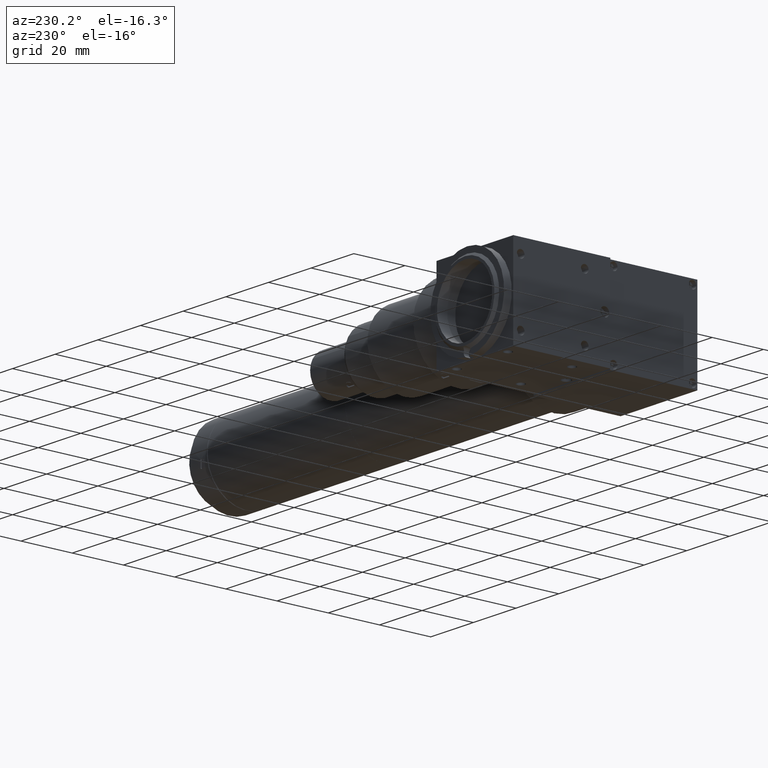
[diagram: clean part render]
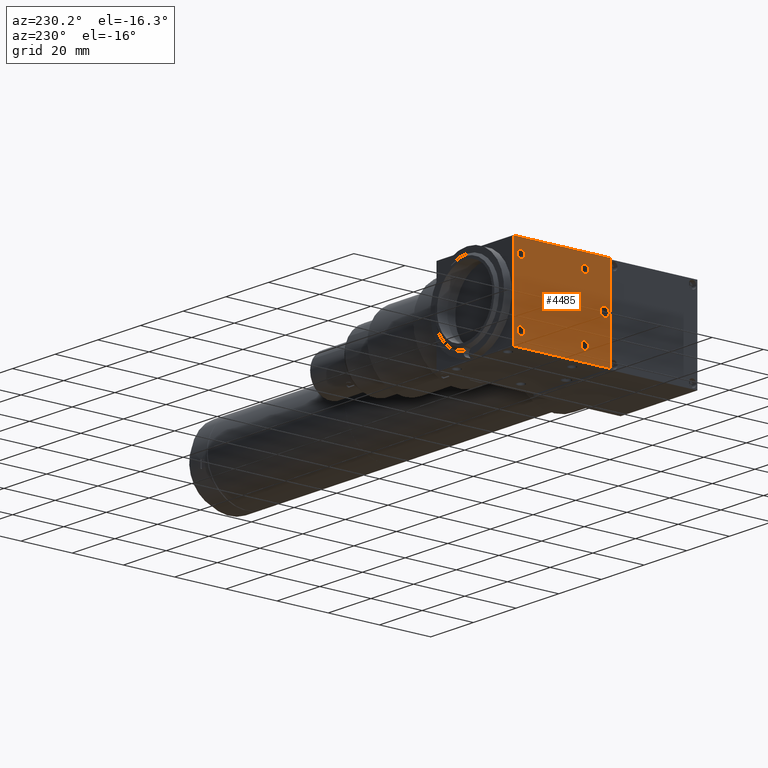
[diagram: same view with one face highlighted and labeled with its STEP entity id]
A machine part, auxiliary view. The second image highlights one B-rep face of the part: STEP entity #4485.
In plain terms, the highlighted planar face has unit normal (1, 0, -0).
Its self-contained STEP definition (entity closure, byte-faithful):
#112 = EDGE_CURVE ( 'NONE', #1861, #14892, #961, .T. ) ;
#195 = DIRECTION ( 'NONE',  ( 0.000000000000000000, 1.000000000000000000, 0.000000000000000000 ) ) ;
#218 = DIRECTION ( 'NONE',  ( 0.000000000000000000, 1.000000000000000000, 0.000000000000000000 ) ) ;
#333 = CARTESIAN_POINT ( 'NONE',  ( -12.00000000000000000, 18.00000000000000000, 8.500000000000000000 ) ) ;
#448 = DIRECTION ( 'NONE',  ( 0.000000000000000000, 1.000000000000000000, 0.000000000000000000 ) ) ;
#584 = ORIENTED_EDGE ( 'NONE', *, *, #10467, .F. ) ;
#662 = CIRCLE ( 'NONE', #15496, 1.499999999999999556 ) ;
#769 = VERTEX_POINT ( 'NONE', #5621 ) ;
#961 = LINE ( 'NONE', #3574, #3229 ) ;
#1080 = AXIS2_PLACEMENT_3D ( 'NONE', #7892, #6789, #3092 ) ;
#1149 = CIRCLE ( 'NONE', #7946, 1.500000000000001332 ) ;
#1472 = DIRECTION ( 'NONE',  ( 0.000000000000000000, 0.000000000000000000, 1.000000000000000000 ) ) ;
#1758 = CIRCLE ( 'NONE', #13304, 1.499999999999999556 ) ;
#1785 = EDGE_CURVE ( 'NONE', #11666, #13773, #1758, .T. ) ;
#1796 = AXIS2_PLACEMENT_3D ( 'NONE', #6444, #13610, #13839 ) ;
#1829 = VERTEX_POINT ( 'NONE', #14902 ) ;
#1861 = VERTEX_POINT ( 'NONE', #11120 ) ;
#2099 = VERTEX_POINT ( 'NONE', #6366 ) ;
#2594 = EDGE_CURVE ( 'NONE', #10121, #7061, #10328, .T. ) ;
#2621 = CARTESIAN_POINT ( 'NONE',  ( -17.30000000000000071, 18.00000000000000000, 0.000000000000000000 ) ) ;
#2756 = FACE_BOUND ( 'NONE', #2833, .T. ) ;
#2833 = EDGE_LOOP ( 'NONE', ( #5281, #14949 ) ) ;
#2884 = ORIENTED_EDGE ( 'NONE', *, *, #112, .F. ) ;
#3063 = FACE_BOUND ( 'NONE', #7874, .T. ) ;
#3092 = DIRECTION ( 'NONE',  ( 0.000000000000000000, 0.000000000000000000, 1.000000000000000000 ) ) ;
#3229 = VECTOR ( 'NONE', #5771, 1000.000000000000000 ) ;
#3246 = VERTEX_POINT ( 'NONE', #12993 ) ;
#3574 = CARTESIAN_POINT ( 'NONE',  ( -17.30000000000000071, 18.00000000000000000, 37.90999999999999659 ) ) ;
#3596 = AXIS2_PLACEMENT_3D ( 'NONE', #9731, #195, #3757 ) ;
#3618 = CARTESIAN_POINT ( 'NONE',  ( 0.000000000000000000, 18.00000000000000000, 2.200000000000000178 ) ) ;
#3744 = ORIENTED_EDGE ( 'NONE', *, *, #6601, .F. ) ;
#3757 = DIRECTION ( 'NONE',  ( 0.000000000000000000, 0.000000000000000000, 1.000000000000000000 ) ) ;
#4089 = FACE_BOUND ( 'NONE', #11567, .T. ) ;
#4308 = CIRCLE ( 'NONE', #13851, 1.750000000000000222 ) ;
#4310 = EDGE_CURVE ( 'NONE', #7061, #10121, #4308, .T. ) ;
#4485 = ADVANCED_FACE ( 'NONE', ( #3063, #5195, #4089, #6367, #2756, #12340 ), #8967, .F. ) ;
#4493 = LINE ( 'NONE', #14320, #6344 ) ;
#4569 = CARTESIAN_POINT ( 'NONE',  ( 12.00000000000000000, 18.00000000000000000, 35.00000000000000000 ) ) ;
#4978 = DIRECTION ( 'NONE',  ( -1.000000000000000000, 0.000000000000000000, 0.000000000000000000 ) ) ;
#5038 = EDGE_CURVE ( 'NONE', #9420, #9801, #5816, .T. ) ;
#5194 = CIRCLE ( 'NONE', #10222, 1.500000000000001332 ) ;
#5195 = FACE_BOUND ( 'NONE', #8510, .T. ) ;
#5215 = ORIENTED_EDGE ( 'NONE', *, *, #12344, .F. ) ;
#5281 = ORIENTED_EDGE ( 'NONE', *, *, #2594, .F. ) ;
#5507 = ORIENTED_EDGE ( 'NONE', *, *, #7276, .F. ) ;
#5533 = EDGE_CURVE ( 'NONE', #14892, #6272, #4493, .T. ) ;
#5621 = CARTESIAN_POINT ( 'NONE',  ( -12.00000000000000000, 18.00000000000000000, 36.50000000000000711 ) ) ;
#5746 = DIRECTION ( 'NONE',  ( 0.000000000000000000, 0.000000000000000000, 1.000000000000000000 ) ) ;
#5771 = DIRECTION ( 'NONE',  ( -1.000000000000000000, 0.000000000000000000, 0.000000000000000000 ) ) ;
#5816 = CIRCLE ( 'NONE', #14616, 1.499999999999999556 ) ;
#6269 = DIRECTION ( 'NONE',  ( 0.000000000000000000, 0.000000000000000000, 1.000000000000000000 ) ) ;
#6272 = VERTEX_POINT ( 'NONE', #13909 ) ;
#6303 = CARTESIAN_POINT ( 'NONE',  ( -12.00000000000000000, 18.00000000000000000, 35.00000000000000000 ) ) ;
#6344 = VECTOR ( 'NONE', #14164, 1000.000000000000000 ) ;
#6366 = CARTESIAN_POINT ( 'NONE',  ( 12.00000000000000000, 18.00000000000000000, 36.50000000000000711 ) ) ;
#6367 = FACE_BOUND ( 'NONE', #8608, .T. ) ;
#6444 = CARTESIAN_POINT ( 'NONE',  ( -17.30000000000000071, 18.00000000000000000, 41.91000000000000369 ) ) ;
#6601 = EDGE_CURVE ( 'NONE', #769, #3246, #8626, .T. ) ;
#6638 = CARTESIAN_POINT ( 'NONE',  ( 0.000000000000000000, 18.00000000000000000, 3.950000000000000178 ) ) ;
#6683 = EDGE_CURVE ( 'NONE', #1861, #1829, #8949, .T. ) ;
#6789 = DIRECTION ( 'NONE',  ( 0.000000000000000000, 1.000000000000000000, 0.000000000000000000 ) ) ;
#6808 = EDGE_LOOP ( 'NONE', ( #2884, #7351, #8862, #8769 ) ) ;
#6889 = DIRECTION ( 'NONE',  ( 0.000000000000000000, 0.000000000000000000, -1.000000000000000000 ) ) ;
#7061 = VERTEX_POINT ( 'NONE', #8693 ) ;
#7257 = LINE ( 'NONE', #2621, #8445 ) ;
#7276 = EDGE_CURVE ( 'NONE', #9801, #9420, #8394, .T. ) ;
#7351 = ORIENTED_EDGE ( 'NONE', *, *, #6683, .T. ) ;
#7362 = VECTOR ( 'NONE', #6889, 1000.000000000000000 ) ;
#7539 = VERTEX_POINT ( 'NONE', #9987 ) ;
#7874 = EDGE_LOOP ( 'NONE', ( #10725, #584 ) ) ;
#7892 = CARTESIAN_POINT ( 'NONE',  ( -12.00000000000000000, 18.00000000000000000, 10.00000000000000000 ) ) ;
#7946 = AXIS2_PLACEMENT_3D ( 'NONE', #6303, #14722, #8756 ) ;
#8348 = DIRECTION ( 'NONE',  ( 0.000000000000000000, 0.000000000000000000, 1.000000000000000000 ) ) ;
#8379 = DIRECTION ( 'NONE',  ( 0.000000000000000000, 1.000000000000000000, 0.000000000000000000 ) ) ;
#8394 = CIRCLE ( 'NONE', #1080, 1.499999999999999556 ) ;
#8445 = VECTOR ( 'NONE', #4978, 1000.000000000000000 ) ;
#8510 = EDGE_LOOP ( 'NONE', ( #3744, #13860 ) ) ;
#8608 = EDGE_LOOP ( 'NONE', ( #8773, #5507 ) ) ;
#8626 = CIRCLE ( 'NONE', #3596, 1.500000000000001332 ) ;
#8693 = CARTESIAN_POINT ( 'NONE',  ( 2.143131898507868297E-16, 18.00000000000000000, 0.4500000000000001221 ) ) ;
#8756 = DIRECTION ( 'NONE',  ( 0.000000000000000000, 0.000000000000000000, 1.000000000000000000 ) ) ;
#8769 = ORIENTED_EDGE ( 'NONE', *, *, #5533, .F. ) ;
#8773 = ORIENTED_EDGE ( 'NONE', *, *, #5038, .F. ) ;
#8862 = ORIENTED_EDGE ( 'NONE', *, *, #15532, .T. ) ;
#8895 = DIRECTION ( 'NONE',  ( 0.000000000000000000, 0.000000000000000000, 1.000000000000000000 ) ) ;
#8949 = LINE ( 'NONE', #10199, #7362 ) ;
#8967 = PLANE ( 'NONE',  #1796 ) ;
#9420 = VERTEX_POINT ( 'NONE', #13290 ) ;
#9529 = CARTESIAN_POINT ( 'NONE',  ( 12.00000000000000000, 18.00000000000000000, 8.500000000000000000 ) ) ;
#9731 = CARTESIAN_POINT ( 'NONE',  ( -12.00000000000000000, 18.00000000000000000, 35.00000000000000000 ) ) ;
#9801 = VERTEX_POINT ( 'NONE', #333 ) ;
#9822 = DIRECTION ( 'NONE',  ( 0.000000000000000000, 1.000000000000000000, 0.000000000000000000 ) ) ;
#9893 = CARTESIAN_POINT ( 'NONE',  ( 0.000000000000000000, 18.00000000000000000, 2.200000000000000178 ) ) ;
#9987 = CARTESIAN_POINT ( 'NONE',  ( 12.00000000000000000, 18.00000000000000000, 33.50000000000000000 ) ) ;
#10121 = VERTEX_POINT ( 'NONE', #6638 ) ;
#10199 = CARTESIAN_POINT ( 'NONE',  ( 17.30000000000000071, 18.00000000000000000, 41.91000000000000369 ) ) ;
#10222 = AXIS2_PLACEMENT_3D ( 'NONE', #12511, #448, #8895 ) ;
#10263 = DIRECTION ( 'NONE',  ( 0.000000000000000000, 1.000000000000000000, 0.000000000000000000 ) ) ;
#10328 = CIRCLE ( 'NONE', #11815, 1.750000000000000222 ) ;
#10438 = ORIENTED_EDGE ( 'NONE', *, *, #1785, .F. ) ;
#10467 = EDGE_CURVE ( 'NONE', #7539, #2099, #11170, .T. ) ;
#10667 = AXIS2_PLACEMENT_3D ( 'NONE', #4569, #14011, #5746 ) ;
#10725 = ORIENTED_EDGE ( 'NONE', *, *, #14665, .F. ) ;
#10914 = CARTESIAN_POINT ( 'NONE',  ( 12.00000000000000000, 18.00000000000000000, 10.00000000000000000 ) ) ;
#11061 = DIRECTION ( 'NONE',  ( 0.000000000000000000, 1.000000000000000000, 0.000000000000000000 ) ) ;
#11120 = CARTESIAN_POINT ( 'NONE',  ( 17.30000000000000071, 18.00000000000000000, 37.90999999999999659 ) ) ;
#11170 = CIRCLE ( 'NONE', #10667, 1.500000000000001332 ) ;
#11567 = EDGE_LOOP ( 'NONE', ( #10438, #5215 ) ) ;
#11585 = CARTESIAN_POINT ( 'NONE',  ( -12.00000000000000000, 18.00000000000000000, 10.00000000000000000 ) ) ;
#11666 = VERTEX_POINT ( 'NONE', #12387 ) ;
#11815 = AXIS2_PLACEMENT_3D ( 'NONE', #9893, #11061, #6269 ) ;
#12340 = FACE_OUTER_BOUND ( 'NONE', #6808, .T. ) ;
#12344 = EDGE_CURVE ( 'NONE', #13773, #11666, #662, .T. ) ;
#12387 = CARTESIAN_POINT ( 'NONE',  ( 12.00000000000000000, 18.00000000000000000, 11.50000000000000000 ) ) ;
#12511 = CARTESIAN_POINT ( 'NONE',  ( 12.00000000000000000, 18.00000000000000000, 35.00000000000000000 ) ) ;
#12993 = CARTESIAN_POINT ( 'NONE',  ( -12.00000000000000000, 18.00000000000000000, 33.50000000000000000 ) ) ;
#13290 = CARTESIAN_POINT ( 'NONE',  ( -12.00000000000000000, 18.00000000000000000, 11.50000000000000000 ) ) ;
#13304 = AXIS2_PLACEMENT_3D ( 'NONE', #14509, #8379, #13327 ) ;
#13327 = DIRECTION ( 'NONE',  ( 0.000000000000000000, 0.000000000000000000, 1.000000000000000000 ) ) ;
#13610 = DIRECTION ( 'NONE',  ( 0.000000000000000000, -1.000000000000000000, 0.000000000000000000 ) ) ;
#13773 = VERTEX_POINT ( 'NONE', #9529 ) ;
#13839 = DIRECTION ( 'NONE',  ( 0.000000000000000000, 0.000000000000000000, -1.000000000000000000 ) ) ;
#13851 = AXIS2_PLACEMENT_3D ( 'NONE', #3618, #218, #8348 ) ;
#13860 = ORIENTED_EDGE ( 'NONE', *, *, #13966, .F. ) ;
#13909 = CARTESIAN_POINT ( 'NONE',  ( -17.30000000000000071, 18.00000000000000000, 0.000000000000000000 ) ) ;
#13966 = EDGE_CURVE ( 'NONE', #3246, #769, #1149, .T. ) ;
#14011 = DIRECTION ( 'NONE',  ( 0.000000000000000000, 1.000000000000000000, 0.000000000000000000 ) ) ;
#14029 = DIRECTION ( 'NONE',  ( 0.000000000000000000, 0.000000000000000000, 1.000000000000000000 ) ) ;
#14164 = DIRECTION ( 'NONE',  ( 0.000000000000000000, 0.000000000000000000, -1.000000000000000000 ) ) ;
#14225 = CARTESIAN_POINT ( 'NONE',  ( -17.30000000000000071, 18.00000000000000000, 37.90999999999999659 ) ) ;
#14320 = CARTESIAN_POINT ( 'NONE',  ( -17.30000000000000071, 18.00000000000000000, 41.91000000000000369 ) ) ;
#14509 = CARTESIAN_POINT ( 'NONE',  ( 12.00000000000000000, 18.00000000000000000, 10.00000000000000000 ) ) ;
#14616 = AXIS2_PLACEMENT_3D ( 'NONE', #11585, #10263, #14029 ) ;
#14665 = EDGE_CURVE ( 'NONE', #2099, #7539, #5194, .T. ) ;
#14722 = DIRECTION ( 'NONE',  ( 0.000000000000000000, 1.000000000000000000, 0.000000000000000000 ) ) ;
#14892 = VERTEX_POINT ( 'NONE', #14225 ) ;
#14902 = CARTESIAN_POINT ( 'NONE',  ( 17.30000000000000071, 18.00000000000000000, 0.000000000000000000 ) ) ;
#14949 = ORIENTED_EDGE ( 'NONE', *, *, #4310, .F. ) ;
#15496 = AXIS2_PLACEMENT_3D ( 'NONE', #10914, #9822, #1472 ) ;
#15532 = EDGE_CURVE ( 'NONE', #1829, #6272, #7257, .T. ) ;